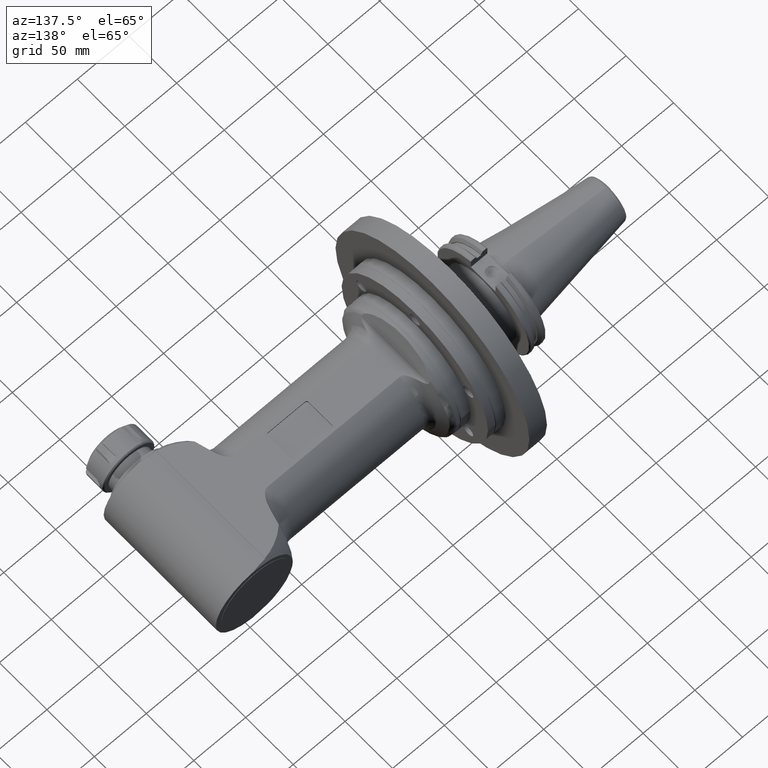
[diagram: clean part render]
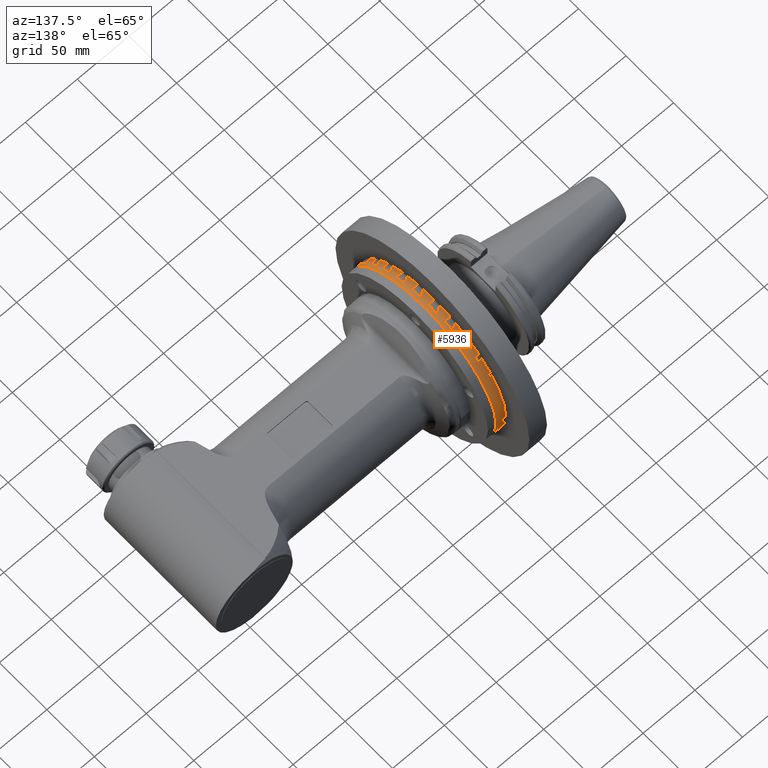
[diagram: same view with one face highlighted and labeled with its STEP entity id]
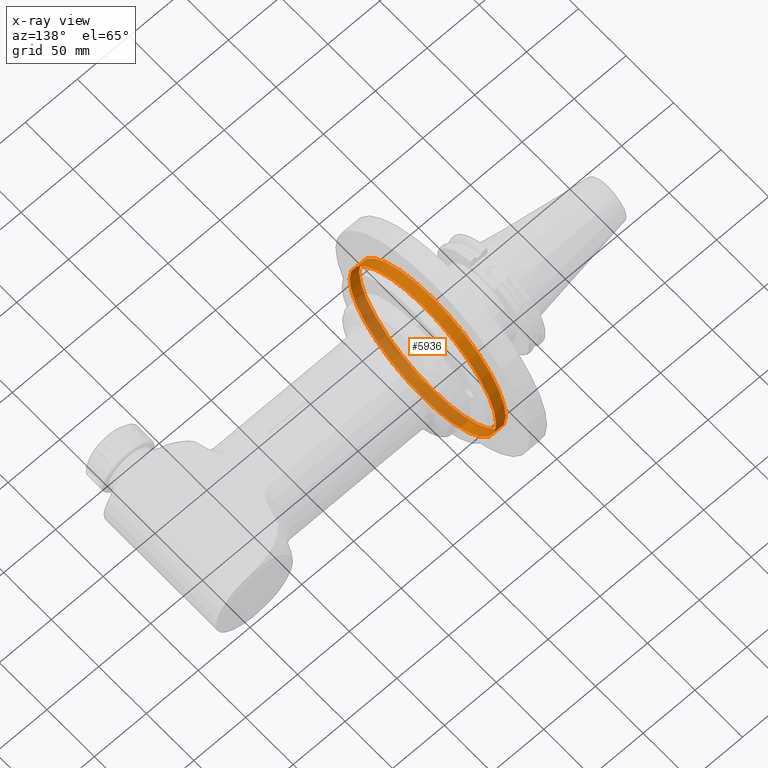
[diagram: x-ray of the same camera — body ghosted, the highlighted face saturated]
A machine part, auxiliary view. The second image highlights one B-rep face of the part: STEP entity #5936.
The next image is the same camera in x-ray: the body ghosted, the highlighted face saturated — about 40% of this face is hidden behind the body in this view.
In plain terms, the highlighted cylindrical surface (bore or boss wall) has radius 77.1 mm, axis along (1, -0, -0).
Its self-contained STEP definition (entity closure, byte-faithful):
#114=CYLINDRICAL_SURFACE('',#6569,77.1);
#669=FACE_OUTER_BOUND('',#1063,.T.);
#1063=EDGE_LOOP('',(#4770,#4771,#4772,#4773,#4774));
#1488=CIRCLE('',#6570,77.1);
#1489=CIRCLE('',#6571,77.1);
#1490=CIRCLE('',#6572,77.1);
#1837=LINE('',#10356,#2182);
#2182=VECTOR('',#7871,77.1);
#2675=VERTEX_POINT('',#10352);
#2676=VERTEX_POINT('',#10353);
#2677=VERTEX_POINT('',#10355);
#3419=EDGE_CURVE('',#2675,#2676,#1488,.T.);
#3420=EDGE_CURVE('',#2676,#2677,#1837,.T.);
#3421=EDGE_CURVE('',#2677,#2677,#1489,.T.);
#3422=EDGE_CURVE('',#2676,#2675,#1490,.T.);
#4770=ORIENTED_EDGE('',*,*,#3419,.T.);
#4771=ORIENTED_EDGE('',*,*,#3420,.T.);
#4772=ORIENTED_EDGE('',*,*,#3421,.T.);
#4773=ORIENTED_EDGE('',*,*,#3420,.F.);
#4774=ORIENTED_EDGE('',*,*,#3422,.T.);
#5936=ADVANCED_FACE('',(#669),#114,.T.);
#6569=AXIS2_PLACEMENT_3D('',#10351,#7867,#7868);
#6570=AXIS2_PLACEMENT_3D('',#10354,#7869,#7870);
#6571=AXIS2_PLACEMENT_3D('',#10357,#7872,#7873);
#6572=AXIS2_PLACEMENT_3D('',#10358,#7874,#7875);
#7867=DIRECTION('center_axis',(1.,0.,0.));
#7868=DIRECTION('ref_axis',(0.,0.,1.));
#7869=DIRECTION('center_axis',(-1.,0.,0.));
#7870=DIRECTION('ref_axis',(0.,0.,1.));
#7871=DIRECTION('',(-1.,0.,0.));
#7872=DIRECTION('center_axis',(1.,0.,0.));
#7873=DIRECTION('ref_axis',(0.,0.,1.));
#7874=DIRECTION('center_axis',(-1.,0.,0.));
#7875=DIRECTION('ref_axis',(0.,0.,1.));
#10351=CARTESIAN_POINT('Origin',(-239.69,0.,0.));
#10352=CARTESIAN_POINT('',(-215.3,9.44202682142609E-15,77.1));
#10353=CARTESIAN_POINT('',(-215.3,9.44202682142609E-15,-77.1));
#10354=CARTESIAN_POINT('Origin',(-215.3,0.,0.));
#10355=CARTESIAN_POINT('',(-224.5,-1.141310607948E-14,-77.1));
#10356=CARTESIAN_POINT('',(-239.69,9.44202682142609E-15,-77.1));
#10357=CARTESIAN_POINT('Origin',(-224.5,0.,0.));
#10358=CARTESIAN_POINT('Origin',(-215.3,0.,0.));